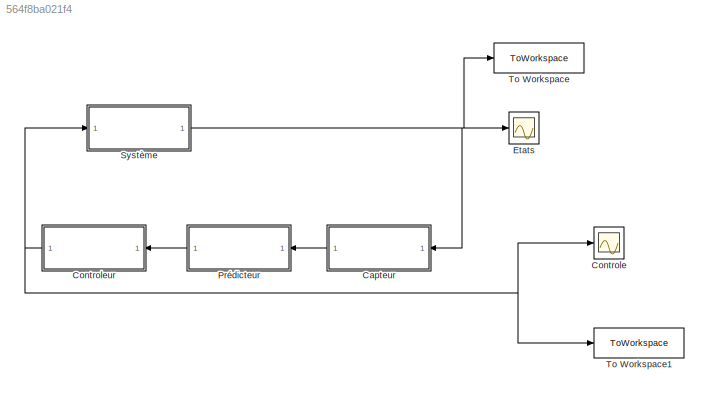
MODEL slx_564f8ba021f4
KIND model
CONFIG AbsTol = auto
CONFIG EnableMultiTasking = off
CONFIG FixedStep = auto
CONFIG MaxStep = auto
CONFIG MinStep = auto
CONFIG RelTol = 1e-3
CONFIG SampleTimeConstraint = Unconstrained
CONFIG SolverName = VariableStepAuto
CONFIG StartTime = 0.0
CONFIG StopTime = 10.0
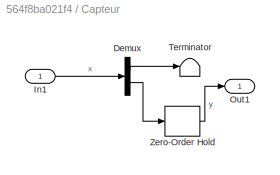
BLOCK [SubSystem] Capteur
  Ports = [1, 1]
  RequestExecContextInheritance = off
BLOCK [Demux] Capteur/Demux
  Outputs = 2
  Ports = [1, 2]
BLOCK [Inport] Capteur/In1
  IconDisplay = Signal name
BLOCK [Outport] Capteur/Out1
  IconDisplay = Signal name
BLOCK [Terminator] Capteur/Terminator
BLOCK [ZeroOrderHold] Capteur/Zero-Order Hold
  SampleTime = delta_t
BLOCK [Scope] Controle
  Floating = off
  NumInputPorts = 1
  Ports = [1]
  ScopeSpecificationString = Simulink.scopes.TimeScopeBlockCfg('CurrentConfiguration', extmgr.ConfigurationSet(extmgr.Configuration('Core','General UI',true),extmgr.Configuration('Core','Source UI',true),extmgr.Configuration('Sources','WiredSimulink',true,'DataLoggingVariableName','ScopeData1'),extmgr.Configuration('Visuals','Time Domain',true),extmgr.Configuration('Tools','Plot Navigation',true),extmgr.Configuration('Tools',...<+65ch>
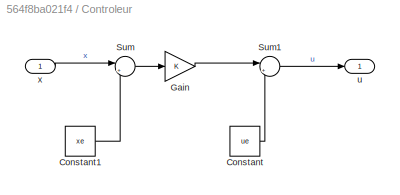
BLOCK [SubSystem] Controleur
  Ports = [1, 1]
  RequestExecContextInheritance = off
BLOCK [Constant] Controleur/Constant
  Value = ue
BLOCK [Constant] Controleur/Constant1
  Value = xe
BLOCK [Gain] Controleur/Gain
  Gain = K
  Multiplication = Matrix(K*u)
BLOCK [Sum] Controleur/Sum
  Inputs = |+-
  Ports = [2, 1]
BLOCK [Sum] Controleur/Sum1
  Inputs = |++
  Ports = [2, 1]
BLOCK [Outport] Controleur/u
  IconDisplay = Signal name
BLOCK [Inport] Controleur/x
  IconDisplay = Signal name
BLOCK [Scope] Etats
  Floating = off
  NumInputPorts = 1
  Ports = [1]
  ScopeSpecificationString = Simulink.scopes.TimeScopeBlockCfg('CurrentConfiguration', extmgr.ConfigurationSet(extmgr.Configuration('Core','General UI',true),extmgr.Configuration('Core','Source UI',true),extmgr.Configuration('Sources','WiredSimulink',true),extmgr.Configuration('Visuals','Time Domain',true,'SerializedDisplays',{struct('MinYLimReal','-0.3507','MaxYLimReal','0.38803','YLabelReal','','MinYLimMag','0.00000','MaxYL...<+1368ch>
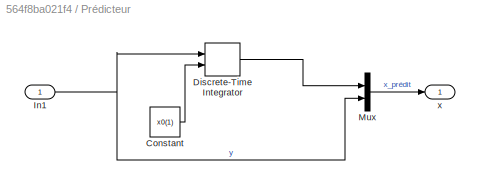
BLOCK [SubSystem] Prédicteur
  Ports = [1, 1]
  RequestExecContextInheritance = off
BLOCK [Constant] Prédicteur/Constant
  Value = x0(1)
BLOCK [DiscreteIntegrator] Prédicteur/Discrete-Time Integrator
  ICPrevOutput = DiscIntNeverNeededParam
  ICPrevScaledInput = DiscIntNeverNeededParam
  InitialConditionSetting = Auto
  InitialConditionSource = external
  Ports = [2, 1]
  SampleTime = -1
BLOCK [Inport] Prédicteur/In1
  IconDisplay = Signal name
BLOCK [Mux] Prédicteur/Mux
  DisplayOption = bar
  Inputs = 2
  Ports = [2, 1]
BLOCK [Outport] Prédicteur/x
  IconDisplay = Signal name
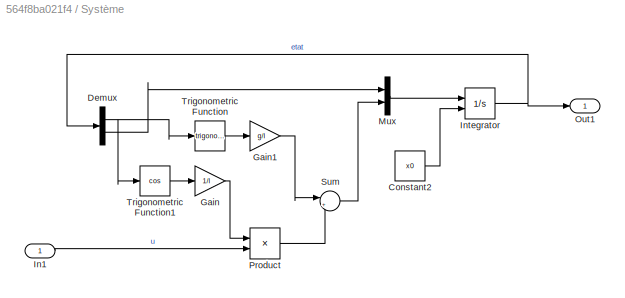
BLOCK [SubSystem] Système
  Ports = [1, 1]
  RequestExecContextInheritance = off
BLOCK [Constant] Système/Constant2
  Value = x0
BLOCK [Demux] Système/Demux
  Outputs = 2
  Ports = [1, 2]
BLOCK [Gain] Système/Gain
  Gain = 1/l
BLOCK [Gain] Système/Gain1
  Gain = g/l
BLOCK [Inport] Système/In1
  IconDisplay = Signal name
BLOCK [Integrator] Système/Integrator
  InitialConditionSource = external
  Ports = [2, 1]
BLOCK [Mux] Système/Mux
  DisplayOption = bar
  Inputs = 2
  Ports = [2, 1]
BLOCK [Outport] Système/Out1
  IconDisplay = Signal name
BLOCK [Product] Système/Product
  Ports = [2, 1]
BLOCK [Sum] Système/Sum
  Inputs = |+-
  Ports = [2, 1]
BLOCK [Trigonometry] Système/Trigonometric Function
  Ports = [1, 1]
BLOCK [Trigonometry] Système/Trigonometric Function1
  Operator = cos
  Ports = [1, 1]
BLOCK [ToWorkspace] To Workspace
  FixptAsFi = on
  MaxDataPoints = inf
  Ports = [1]
  SampleTime = -1
  SaveFormat = Timeseries
  VariableName = X
BLOCK [ToWorkspace] To Workspace1
  FixptAsFi = on
  MaxDataPoints = inf
  Ports = [1]
  SampleTime = -1
  SaveFormat = Timeseries
  VariableName = U
LINE Capteur/Demux:1 -> Capteur/Terminator:1
LINE Capteur/Demux:2 -> Capteur/Zero-Order Hold:1
LINE Capteur/In1:1 -> Capteur/Demux:1
LINE Capteur/Zero-Order Hold:1 -> Capteur/Out1:1
LINE Capteur:1 -> Prédicteur:1
LINE Controleur/Constant1:1 -> Controleur/Sum:2
LINE Controleur/Constant:1 -> Controleur/Sum1:2
LINE Controleur/Gain:1 -> Controleur/Sum1:1
LINE Controleur/Sum1:1 -> Controleur/u:1
LINE Controleur/Sum:1 -> Controleur/Gain:1
LINE Controleur/x:1 -> Controleur/Sum:1
NET Controleur:1 -> Controle:1, Système:1, To Workspace1:1
LINE Prédicteur/Constant:1 -> Prédicteur/Discrete-Time Integrator:2
LINE Prédicteur/Discrete-Time Integrator:1 -> Prédicteur/Mux:1
NET Prédicteur/In1:1 -> Prédicteur/Discrete-Time Integrator:1, Prédicteur/Mux:2
LINE Prédicteur/Mux:1 -> Prédicteur/x:1
LINE Prédicteur:1 -> Controleur:1
LINE Système/Constant2:1 -> Système/Integrator:2
NET Système/Demux:1 -> Système/Trigonometric Function1:1, Système/Trigonometric Function:1
LINE Système/Demux:2 -> Système/Mux:1
LINE Système/Gain1:1 -> Système/Sum:1
LINE Système/Gain:1 -> Système/Product:1
LINE Système/In1:1 -> Système/Product:2
NET Système/Integrator:1 -> Système/Demux:1, Système/Out1:1
LINE Système/Mux:1 -> Système/Integrator:1
LINE Système/Product:1 -> Système/Sum:2
LINE Système/Sum:1 -> Système/Mux:2
LINE Système/Trigonometric Function1:1 -> Système/Gain:1
LINE Système/Trigonometric Function:1 -> Système/Gain1:1
NET Système:1 -> Capteur:1, Etats:1, To Workspace:1
note: NET lines group one-source signal fan-out (src -> all destinations, sorted); 1:1 wires keep LINE
